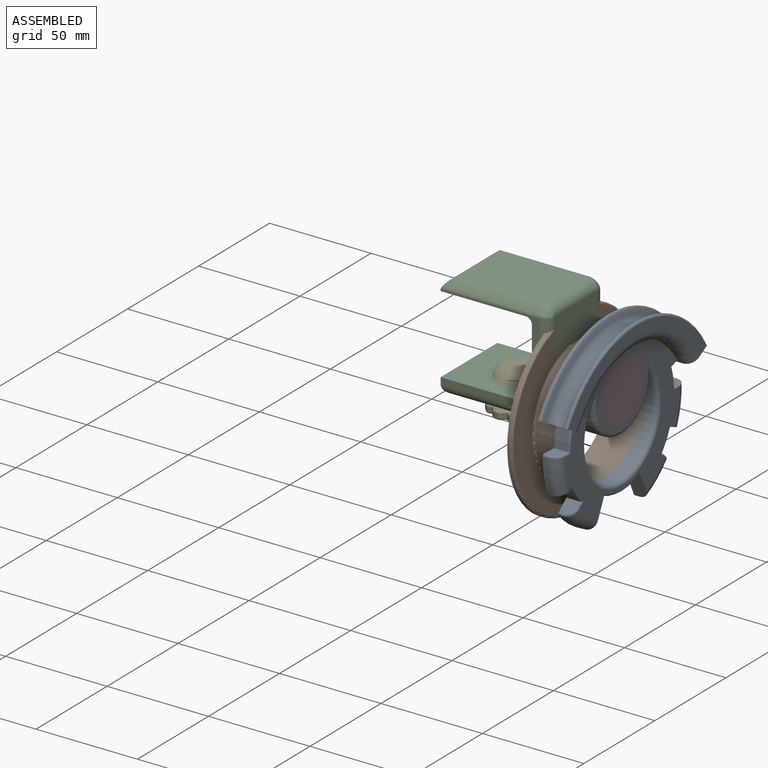
[diagram: assembled view]
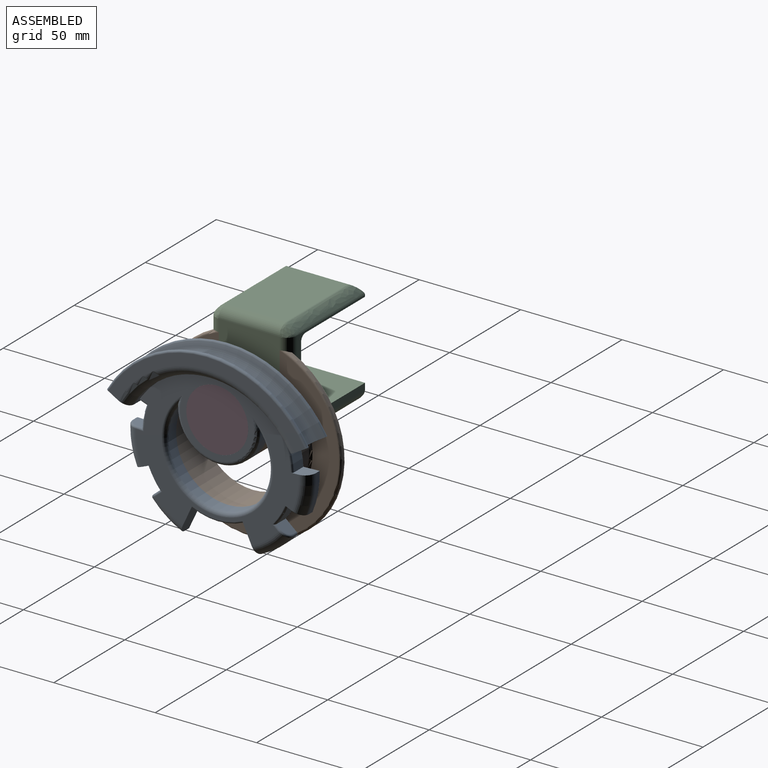
[diagram: assembled view, second angle]
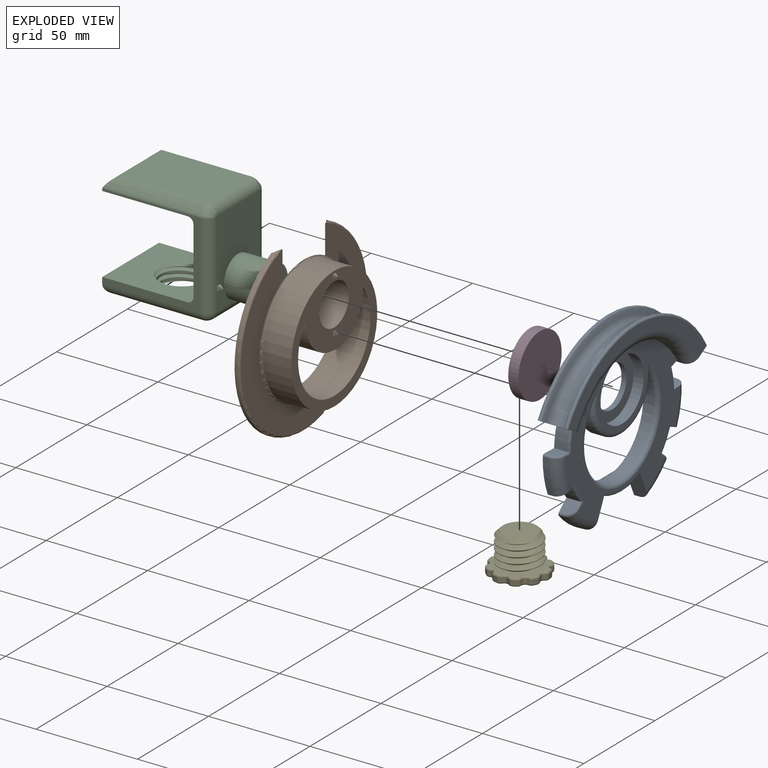
[diagram: exploded view]
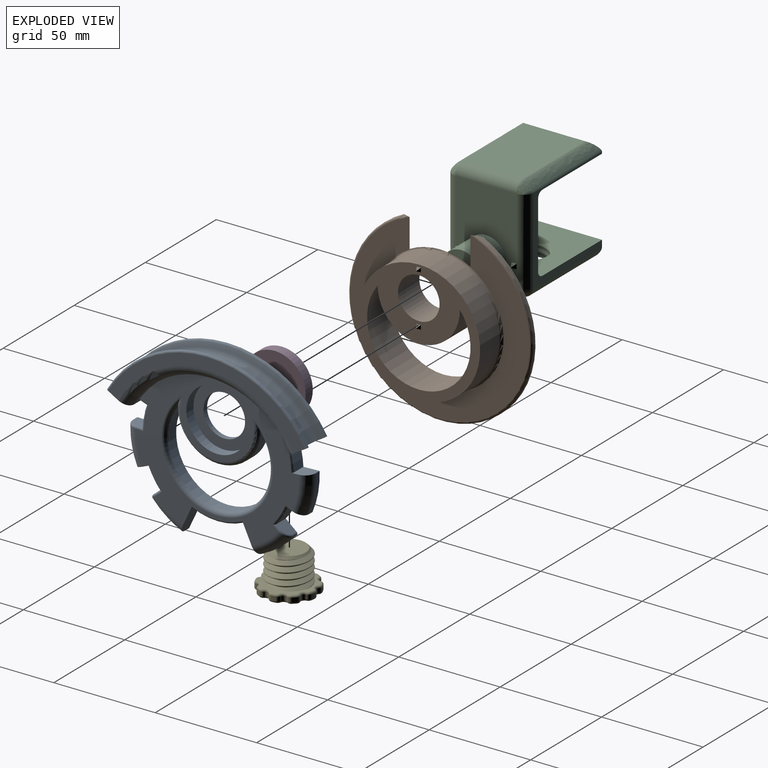
[diagram: exploded view, second angle]
ASSEMBLY  parts=5 mates=5
PART A: 68 faces, bbox 119.3x20.2x103.2 mm
  f0: cylinder r=10.25mm len=20.5mm, axis (0,1,0), area 161mm2, adj f8,f17
  f1: cylinder r=20.25mm len=40.5mm, axis (0,1,0), area 352.6mm2, adj f3,f8,f38
  f2: cylinder r=30.25mm len=25.57mm, axis (0,-1,0), area 171.6mm2, adj f8,f22,f23,f59
  f3: cylinder r=25.5mm len=51mm, axis (0,1,0), area 623.9mm2, adj f1,f8,f37
  f4: plane 15x10.21mm, normal (-0.5,0,-0.87), area 111.8mm2, adj f6,f7,f8,f9,f10,f11,f12,f13
  f5: plane 15x10.21mm, normal (0.5,0,-0.87), area 111.8mm2, adj f6,f7,f8,f9,f10,f11,f12,f13
  f6: cylinder r=45.25mm len=78.38mm, axis (0,1,0), area 254.1mm2, adj f4,f5,f8,f9,f15,f16,f32,f35
  f7: plane 97.05x30.91mm, normal (0,1,0), area 643.7mm2, adj f4,f5,f9,f14
  f8: plane 97.05x87.04mm, normal (0,-1,0), area 4425.5mm2, adj f0,f1,f2,f3,f4,f5,f6,f13
  f9: torus R=50.25mm, axis (0,1,0), area 774.2mm2, adj f4,f5,f6,f7
  f10: torus R=55.25mm, axis (0,-1,0), area 1443.1mm2, adj f4,f5,f11,f12
  f11: torus R=49.41mm, axis (0,1,0), area 278.3mm2, adj f4,f5,f10,f13
  f12: torus R=49.41mm, axis (0,1,0), area 278.3mm2, adj f4,f5,f10,f14
  f13: torus R=56.03mm, axis (0,-1,0), area 331mm2, adj f4,f5,f8,f11
  f14: torus R=56.03mm, axis (0,1,0), area 331mm2, adj f4,f5,f7,f12
  f15: plane 80.5x71.73mm, normal (0,1,0), area 2045.8mm2, adj f6,f16,f22,f23,f26,f29,f34,f35
  f16: torus R=40.25mm, axis (0,1,0), area 1.1mm2, adj f6,f15,f35
  f17: plane 30.5x30.5mm, normal (0,1,0), area 400.6mm2, adj f0,f36
  f18: cylinder r=45.25mm len=19.27mm, axis (0,-1,0), area 49.4mm2, adj f8,f29,f34,f43
  f19: cylinder r=45.25mm len=14.87mm, axis (0,-1,0), area 46.8mm2, adj f8,f23,f42,f53
  f20: cylinder r=45.25mm len=18.25mm, axis (0,-1,0), area 46.8mm2, adj f8,f26,f40,f44
  f21: cylinder r=45.25mm len=14.87mm, axis (0,-1,0), area 46.8mm2, adj f8,f22,f41,f57
  f22: plane 14.5x7.5mm, normal (-0.91,0,-0.42), area 107.3mm2, adj f2,f8,f15,f21,f41,f59
  f23: plane 14.5x7.5mm, normal (0.91,0,-0.42), area 107.3mm2, adj f2,f8,f15,f19,f42,f59
  f24: plane 6.5x5.35mm, normal (0.64,0,0.77), area 42mm2, adj f8,f25,f55,f56,f57
  f25: cylinder r=37.25mm len=9.5mm, axis (0,1,0), area 72.6mm2, adj f8,f24,f26,f54
  f26: plane 8.3x7.5mm, normal (-0.39,0,-0.92), area 54.8mm2, adj f8,f15,f20,f25,f40,f54
  f27: cylinder r=37.25mm len=9.5mm, axis (0,1,0), area 72.6mm2, adj f8,f28,f29,f50
  f28: plane 6.5x5.35mm, normal (-0.64,0,0.77), area 42mm2, adj f8,f27,f51,f52,f53
  f29: plane 8.3x7.5mm, normal (0.39,0,-0.92), area 54.8mm2, adj f8,f15,f18,f27,f43,f50
  f30: plane 6.98x6.5mm, normal (-0.04,0,1), area 42mm2, adj f8,f31,f44,f45,f46
  f31: cylinder r=37.25mm len=10.93mm, axis (0,1,0), area 72.6mm2, adj f8,f30,f32,f47
  f32: plane 6.5x3.48mm, normal (0.33,0,-0.94), area 24mm2, adj f6,f8,f31,f48,f49
  f33: cylinder r=37.25mm len=10.93mm, axis (0,1,0), area 72.6mm2, adj f8,f34,f35,f58
  f34: plane 8.99x7.5mm, normal (0.04,0,1), area 54.8mm2, adj f8,f15,f18,f33,f43,f58
  f35: plane 7.5x4.43mm, normal (-0.33,0,-0.94), area 27.9mm2, adj f6,f8,f15,f16,f33,f58
  f36: cylinder r=15.25mm len=30.5mm, axis (0,-1,0), area 479.1mm2, adj f15,f17
  f37: torus R=27.5mm, axis (0,1,0), area 386.9mm2, adj f3,f15,f38
  f38: torus R=18.25mm, axis (0,1,0), area 214.5mm2, adj f1,f15,f37
  f39: torus R=40.25mm, axis (0,1,0), area 0.5mm2, adj f6,f15,f49
  f40: torus R=40.25mm, axis (0,1,0), area 140.8mm2, adj f15,f20,f26,f45
  f41: torus R=40.25mm, axis (0,1,0), area 140.8mm2, adj f15,f21,f22,f56
  f42: torus R=40.25mm, axis (0,1,0), area 140.8mm2, adj f15,f19,f23,f52
  f43: torus R=40.25mm, axis (0,1,0), area 148.8mm2, adj f15,f18,f29,f34
  f44: cylinder r=1mm len=2.5mm, axis (0,-1,0), area 4mm2, adj f8,f20,f30,f45
  f45: bspline ~6.15x6.12mm, area 11.6mm2, adj f30,f40,f44,f46
  f46: cylinder r=1mm len=4.04mm, axis (1,0,0.04), area 5.5mm2, adj f15,f30,f45,f47
  f47: torus R=36.25mm, axis (0,1,0), area 19mm2, adj f15,f31,f46,f48
  f48: cylinder r=1mm len=4.11mm, axis (-0.94,0,-0.33), area 5.5mm2, adj f15,f32,f47,f49
  f49: bspline ~2.68x1.78mm, area 1mm2, adj f6,f32,f39,f48
  f50: torus R=36.25mm, axis (0,1,0), area 18.2mm2, adj f15,f27,f29,f51
  f51: cylinder r=1mm len=3.71mm, axis (0.77,0,0.64), area 5.5mm2, adj f15,f28,f50,f52
  f52: bspline ~6.12x5.34mm, area 11.6mm2, adj f28,f42,f51,f53
  f53: cylinder r=1mm len=2.5mm, axis (0,-1,0), area 4mm2, adj f8,f19,f28,f52
  f54: torus R=36.25mm, axis (0,1,0), area 18.2mm2, adj f15,f25,f26,f55
  f55: cylinder r=1mm len=3.71mm, axis (0.77,0,-0.64), area 5.5mm2, adj f15,f24,f54,f56
  f56: bspline ~6.12x5.34mm, area 11.6mm2, adj f24,f41,f55,f57
  f57: cylinder r=1mm len=2.5mm, axis (0,-1,0), area 4mm2, adj f8,f21,f24,f56
  f58: torus R=36.25mm, axis (0,1,0), area 17.4mm2, adj f15,f33,f34,f35
  f59: torus R=29.25mm, axis (0,1,0), area 41mm2, adj f2,f15,f22,f23
  f60: plane 2x2mm, normal (0,-0.45,0.89), area 2.2mm2, adj f8,f61,f63
  f61: plane 2x2mm, normal (0.89,-0.45,0), area 2.2mm2, adj f8,f60,f62
  f62: plane 2x2mm, normal (0,-0.45,-0.89), area 2.2mm2, adj f8,f61,f63
  f63: plane 2x2mm, normal (-0.89,-0.45,0), area 2.2mm2, adj f8,f60,f62
  f64: plane 2x2mm, normal (0,-0.45,-0.89), area 2.2mm2, adj f8,f65,f67
  f65: plane 2x2mm, normal (-0.89,-0.45,0), area 2.2mm2, adj f8,f64,f66
  f66: plane 2x2mm, normal (0,-0.45,0.89), area 2.2mm2, adj f8,f65,f67
  f67: plane 2x2mm, normal (0.89,-0.45,0), area 2.2mm2, adj f8,f64,f66
PART B: 29 faces, bbox 98x19.5x95.1 mm
  f0: plane 60.5x60.5mm, normal (0,1,0), area 1430.8mm2, adj f14,f15,f19,f20,f21,f22,f23,f24
  f1: plane 2.5x2.5mm, normal (0.89,-0.45,0), area 3.5mm2, adj f3,f5,f12
  f2: plane 2.5x2.5mm, normal (0,-0.45,0.89), area 3.5mm2, adj f7,f8,f16
  f3: plane 2.5x2.5mm, normal (0,-0.45,0.89), area 3.5mm2, adj f1,f4,f16
  f4: plane 2.5x2.5mm, normal (-0.89,-0.45,0), area 3.5mm2, adj f3,f5,f16
  f5: plane 2.5x2.5mm, normal (0,-0.45,-0.89), area 3.5mm2, adj f1,f4,f16
  f6: plane 2.5x2.5mm, normal (0,-0.45,-0.89), area 3.5mm2, adj f7,f8,f16
  f7: plane 2.5x2.5mm, normal (0.89,-0.45,0), area 3.5mm2, adj f2,f6,f16
  f8: plane 2.5x2.5mm, normal (-0.89,-0.45,0), area 3.5mm2, adj f2,f6,f17
  f9: torus R=44.25mm, axis (0,1,0), area 389.8mm2, adj f10,f11,f12,f17
  f10: plane 88.5x85.88mm, normal (0,1,0), area 2682mm2, adj f9,f12,f13,f17
  f11: cylinder r=45.25mm len=90.5mm, axis (0,-1,0), area 368.5mm2, adj f9,f12,f17,f18
  f12: cylinder r=5mm len=40.1mm, axis (0,0,1), area 190.2mm2, adj f1,f9,f10,f11,f16,f18,f20
  f13: torus R=31.25mm, axis (0,1,0), area 302.1mm2, adj f10,f14,f16
  f14: cylinder r=30.25mm len=60.5mm, axis (0,-1,0), area 2660.9mm2, adj f0,f13
  f15: cylinder r=10.25mm len=20.5mm, axis (0,1,0), area 966mm2, adj f0,f16
  f16: plane 36.25x30mm, normal (0,-1,0), area 646.2mm2, adj f2,f3,f4,f5,f6,f7,f12,f13
  f17: cylinder r=5mm len=40.1mm, axis (0,0,1), area 190.2mm2, adj f8,f9,f10,f11,f16,f18,f20
  f18: plane 90.5x86.16mm, normal (0,-1,0), area 3585mm2, adj f11,f12,f17,f19,f20
  f19: cylinder r=25.5mm len=51mm, axis (0,1,0), area 1985mm2, adj f0,f18,f20
  f20: cylinder r=20.25mm len=40.5mm, axis (0,1,0), area 1009.3mm2, adj f0,f12,f16,f17,f18,f19
  f21: plane 2x2mm, normal (0,0.45,0.89), area 2.2mm2, adj f0,f22,f24
  f22: plane 2x2mm, normal (0.89,0.45,0), area 2.2mm2, adj f0,f21,f23
  f23: plane 2x2mm, normal (0,0.45,-0.89), area 2.2mm2, adj f0,f22,f24
  f24: plane 2x2mm, normal (-0.89,0.45,0), area 2.2mm2, adj f0,f21,f23
  f25: plane 2x2mm, normal (0,0.45,-0.89), area 2.2mm2, adj f0,f26,f28
  f26: plane 2x2mm, normal (-0.89,0.45,0), area 2.2mm2, adj f0,f25,f27
  f27: plane 2x2mm, normal (0,0.45,0.89), area 2.2mm2, adj f0,f26,f28
  f28: plane 2x2mm, normal (0.89,0.45,0), area 2.2mm2, adj f0,f25,f27
PART C: 43 faces, bbox 44.1x73x53.7 mm
  f0: plane 42.35x30mm, normal (0,1,0), area 943.8mm2, adj f11,f17,f18,f19,f20,f30,f32,f33
  f1: cylinder r=10mm len=20mm, axis (0,0,-1), area 159.3mm2, adj f13,f14,f15,f16
  f2: plane 40x1mm, normal (0,-1,0), area 40mm2, adj f3,f9,f10,f40
  f3: plane 42x40mm, normal (0,0,-1), area 1680mm2, adj f2,f9,f10,f28
  f4: plane 40x32.35mm, normal (0,-1,0), area 1294mm2, adj f9,f10,f28,f29
  f5: plane 42.11x40.11mm, normal (0,0,1), area 1296.5mm2, adj f6,f9,f10,f14,f15,f16,f29
  f6: plane 40x3mm, normal (0,-1,0), area 120mm2, adj f5,f9,f10,f25
  f7: plane 43.11x30.11mm, normal (0,0,-1), area 906.5mm2, adj f13,f15,f16,f19,f23,f24,f25
  f8: plane 43x30mm, normal (0,0,1), area 1290mm2, adj f17,f39,f40,f41
  f9: plane 48x42.35mm, normal (1,0,0), area 310.9mm2, adj f2,f3,f4,f5,f6,f18,f23,f28
  f10: plane 48x42.35mm, normal (-1,0,0), area 310.9mm2, adj f2,f3,f4,f5,f6,f20,f24,f28
  f11: cylinder r=10mm len=20mm, axis (0,-1,0), area 1099.6mm2, adj f0,f12
  f12: plane 20x20mm, normal (0,1,0), area 235.6mm2, adj f11,f26
  f13: cone r=10mm half-angle=45deg, axis (0,0,-1), area 57.7mm2, adj f1,f7,f15,f16
  f14: cone r=11mm half-angle=45deg, axis (0,0,1), area 57.7mm2, adj f1,f5,f15,f16
  f15: bspline ~26.56x23mm, area 287.3mm2, adj f1,f5,f7,f13,f14,f16
  f16: bspline ~26.56x23mm, area 287.2mm2, adj f1,f5,f7,f13,f14,f15
  f17: cylinder r=5mm len=30mm, axis (-1,0,0), area 235.6mm2, adj f0,f8,f38,f42
  f18: cylinder r=5mm len=42.35mm, axis (0,0,-1), area 332.6mm2, adj f0,f9,f21,f31,f38
  f19: cylinder r=5mm len=30mm, axis (-1,0,0), area 235.6mm2, adj f0,f7,f21,f22
  f20: cylinder r=5mm len=42.35mm, axis (0,0,1), area 332.6mm2, adj f0,f10,f22,f35,f42
  f21: sphere r=5mm, area 25mm2, adj f18,f19,f23
  f22: sphere r=5mm, area 53.5mm2, adj f19,f20,f24
  f23: cylinder r=5mm len=48mm, axis (0,-1,0), area 357.4mm2, adj f7,f9,f21,f25
  f24: cylinder r=5mm len=48mm, axis (0,1,0), area 357.4mm2, adj f7,f10,f22,f25
  f25: cylinder r=5mm len=40mm, axis (-1,0,0), area 274.9mm2, adj f6,f7,f23,f24
  f26: cylinder r=5mm len=10mm, axis (0,-1,0), area 157.1mm2, adj f12,f27
  f27: plane 10x10mm, normal (0,1,0), area 78.5mm2, adj f26
  f28: cylinder r=3mm len=40mm, axis (1,0,0), area 188.5mm2, adj f3,f4,f9,f10
  f29: cylinder r=3mm len=40mm, axis (1,0,0), area 188.5mm2, adj f4,f5,f9,f10
  f30: plane 2.5x2.5mm, normal (0,0.45,0.89), area 3.5mm2, adj f0,f31,f33
  f31: plane 2.5x2.5mm, normal (0.89,0.45,0), area 3.5mm2, adj f18,f30,f32
  f32: plane 2.5x2.5mm, normal (0,0.45,-0.89), area 3.5mm2, adj f0,f31,f33
  f33: plane 2.5x2.5mm, normal (-0.89,0.45,0), area 3.5mm2, adj f0,f30,f32
  f34: plane 2.5x2.5mm, normal (0,0.45,-0.89), area 3.5mm2, adj f0,f35,f37
  f35: plane 2.5x2.5mm, normal (-0.89,0.45,0), area 3.5mm2, adj f20,f34,f36
  f36: plane 2.5x2.5mm, normal (0,0.45,0.89), area 3.5mm2, adj f0,f35,f37
  f37: plane 2.5x2.5mm, normal (0.89,0.45,0), area 3.5mm2, adj f0,f34,f36
  f38: bspline ~5.01x5mm, area 25.7mm2, adj f17,f18,f39
  f39: bspline ~50.4x5mm, area 333mm2, adj f8,f9,f38,f40
  f40: bspline ~44x5mm, area 256.2mm2, adj f2,f8,f39,f41
  f41: bspline ~50.4x5mm, area 333mm2, adj f8,f10,f40,f42
  f42: bspline ~5.01x5mm, area 25.7mm2, adj f17,f20,f41
PART D: 5 faces, bbox 30.5x10x30.5 mm
  f0: cylinder r=5mm len=10mm, axis (0,1,0), area 157.1mm2, adj f1,f4
  f1: plane 10x10mm, normal (0,-1,0), area 78.5mm2, adj f0
  f2: cylinder r=15.25mm len=30.5mm, axis (0,-1,0), area 479.1mm2, adj f3,f4
  f3: plane 30.5x30.5mm, normal (0,1,0), area 730.6mm2, adj f2
  f4: plane 30.5x30.5mm, normal (0,-1,0), area 652.1mm2, adj f0,f2
PART E: 129 faces, bbox 28.1x28.3x20.5 mm
  f0: cylinder r=14mm len=2.09mm, axis (0,0,1), area 4.2mm2, adj f26,f45,f56,f90
  f1: cylinder r=14mm len=2mm, axis (0,0,1), area 4.2mm2, adj f27,f28,f48,f89
  f2: cylinder r=14mm len=2mm, axis (0,0,1), area 4.2mm2, adj f29,f30,f51,f97
  f3: cylinder r=14mm len=2.06mm, axis (0,0,1), area 4.2mm2, adj f31,f32,f59,f105
  f4: cylinder r=14mm len=2mm, axis (0,0,1), area 4.2mm2, adj f33,f34,f67,f113
  f5: cylinder r=14mm len=2.09mm, axis (0,0,1), area 4.2mm2, adj f35,f36,f75,f121
  f6: cylinder r=14mm len=2mm, axis (0,0,1), area 4.2mm2, adj f37,f38,f83,f122
  f7: cylinder r=14mm len=2mm, axis (0,0,1), area 4.2mm2, adj f39,f40,f80,f114
  f8: cylinder r=14mm len=2.06mm, axis (0,0,1), area 4.2mm2, adj f41,f42,f72,f106
  f9: plane 16.51x16.45mm, normal (0,0,1), area 213.7mm2, adj f10,f11,f12
  f10: cone r=8.25mm half-angle=45deg, axis (0,0,-1), area 94.6mm2, adj f9,f11,f12,f128
  f11: bspline ~24.83x21.5mm, area 670.3mm2, adj f9,f10,f12,f13,f128
  f12: bspline ~24.83x21.5mm, area 670.4mm2, adj f9,f10,f11,f13,f126,f128
  f13: plane 25.99x25.8mm, normal (0,0,1), area 191.2mm2, adj f11,f12,f86,f87,f88,f89,f90,f91
  f14: cylinder r=14mm len=2mm, axis (0,0,1), area 4.2mm2, adj f43,f44,f64,f98
  f15: plane 25.99x25.8mm, normal (0,0,-1), area 472.5mm2, adj f46,f47,f48,f49,f50,f51,f52,f53
  f16: cylinder r=1.68mm len=2.37mm, axis (0,0,1), area 5.9mm2, adj f44,f45,f60,f94
  f17: cylinder r=1.68mm len=2.26mm, axis (0,0,1), area 5.9mm2, adj f42,f43,f68,f102
  f18: cylinder r=1.68mm len=2.58mm, axis (0,0,1), area 5.9mm2, adj f40,f41,f76,f110
  f19: cylinder r=1.68mm len=2mm, axis (0,0,1), area 5.9mm2, adj f38,f39,f84,f118
  f20: cylinder r=1.68mm len=2.54mm, axis (0,0,1), area 5.9mm2, adj f36,f37,f79,f125
  f21: cylinder r=1.68mm len=2.37mm, axis (0,0,1), area 5.9mm2, adj f34,f35,f71,f117
  f22: cylinder r=1.68mm len=2.26mm, axis (0,0,1), area 5.9mm2, adj f32,f33,f63,f109
  f23: cylinder r=1.68mm len=2.58mm, axis (0,0,1), area 5.9mm2, adj f30,f31,f55,f101
  f24: cylinder r=1.68mm len=2mm, axis (0,0,1), area 5.9mm2, adj f28,f29,f47,f93
  f25: cylinder r=1.68mm len=2.54mm, axis (0,0,1), area 5.9mm2, adj f26,f27,f52,f86
  f26: cylinder r=2mm len=2mm, axis (0,0,-1), area 4.5mm2, adj f0,f25,f54,f88
  f27: cylinder r=2mm len=2.11mm, axis (0,0,1), area 4.5mm2, adj f1,f25,f50,f87
  f28: cylinder r=2mm len=2mm, axis (0,0,-1), area 4.5mm2, adj f1,f24,f46,f91
  f29: cylinder r=2mm len=2mm, axis (0,0,1), area 4.5mm2, adj f2,f24,f49,f95
  f30: cylinder r=2mm len=2.08mm, axis (0,0,-1), area 4.5mm2, adj f2,f23,f53,f99
  f31: cylinder r=2mm len=2mm, axis (0,0,1), area 4.5mm2, adj f3,f23,f57,f103
  f32: cylinder r=2mm len=2mm, axis (0,0,-1), area 4.5mm2, adj f3,f22,f61,f107
  f33: cylinder r=2mm len=2.09mm, axis (0,0,1), area 4.5mm2, adj f4,f22,f65,f111
  f34: cylinder r=2mm len=2.11mm, axis (0,0,-1), area 4.5mm2, adj f4,f21,f69,f115
  f35: cylinder r=2mm len=2mm, axis (0,0,1), area 4.5mm2, adj f5,f21,f73,f119
  f36: cylinder r=2mm len=2mm, axis (0,0,-1), area 4.5mm2, adj f5,f20,f77,f123
  f37: cylinder r=2mm len=2.11mm, axis (0,0,1), area 4.5mm2, adj f6,f20,f81,f124
  f38: cylinder r=2mm len=2mm, axis (0,0,-1), area 4.5mm2, adj f6,f19,f85,f120
  f39: cylinder r=2mm len=2mm, axis (0,0,1), area 4.5mm2, adj f7,f19,f82,f116
  f40: cylinder r=2mm len=2.08mm, axis (0,0,-1), area 4.5mm2, adj f7,f18,f78,f112
  f41: cylinder r=2mm len=2mm, axis (0,0,1), area 4.5mm2, adj f8,f18,f74,f108
  f42: cylinder r=2mm len=2mm, axis (0,0,-1), area 4.5mm2, adj f8,f17,f70,f104
  f43: cylinder r=2mm len=2.09mm, axis (0,0,1), area 4.5mm2, adj f14,f17,f66,f100
  f44: cylinder r=2mm len=2.11mm, axis (0,0,-1), area 4.5mm2, adj f14,f16,f62,f96
  f45: cylinder r=2mm len=2mm, axis (0,0,1), area 4.5mm2, adj f0,f16,f58,f92
  f46: torus R=1mm, axis (0,0,1), area 2.9mm2, adj f15,f28,f47,f48
  f47: torus R=2.68mm, axis (0,0,1), area 5.7mm2, adj f15,f24,f46,f49
  f48: torus R=13mm, axis (0,0,1), area 3.2mm2, adj f1,f15,f46,f50
  f49: torus R=1mm, axis (0,0,1), area 2.9mm2, adj f15,f29,f47,f51
  f50: torus R=1mm, axis (0,0,1), area 2.9mm2, adj f15,f27,f48,f52
  f51: torus R=13mm, axis (0,0,1), area 3.2mm2, adj f2,f15,f49,f53
  f52: torus R=2.68mm, axis (0,0,1), area 5.7mm2, adj f15,f25,f50,f54
  f53: torus R=1mm, axis (0,0,1), area 2.9mm2, adj f15,f30,f51,f55
  f54: torus R=1mm, axis (0,0,1), area 2.9mm2, adj f15,f26,f52,f56
  f55: torus R=2.68mm, axis (0,0,1), area 5.7mm2, adj f15,f23,f53,f57
  f56: torus R=13mm, axis (0,0,1), area 3.2mm2, adj f0,f15,f54,f58
  f57: torus R=1mm, axis (0,0,1), area 2.9mm2, adj f15,f31,f55,f59
  f58: torus R=1mm, axis (0,0,1), area 2.9mm2, adj f15,f45,f56,f60
  f59: torus R=13mm, axis (0,0,1), area 3.2mm2, adj f3,f15,f57,f61
  f60: torus R=2.68mm, axis (0,0,1), area 5.7mm2, adj f15,f16,f58,f62
  f61: torus R=1mm, axis (0,0,1), area 2.9mm2, adj f15,f32,f59,f63
  f62: torus R=1mm, axis (0,0,1), area 2.9mm2, adj f15,f44,f60,f64
  f63: torus R=2.68mm, axis (0,0,1), area 5.7mm2, adj f15,f22,f61,f65
  f64: torus R=13mm, axis (0,0,1), area 3.2mm2, adj f14,f15,f62,f66
  f65: torus R=1mm, axis (0,0,1), area 2.9mm2, adj f15,f33,f63,f67
  f66: torus R=1mm, axis (0,0,1), area 2.9mm2, adj f15,f43,f64,f68
  f67: torus R=13mm, axis (0,0,1), area 3.2mm2, adj f4,f15,f65,f69
  f68: torus R=2.68mm, axis (0,0,1), area 5.7mm2, adj f15,f17,f66,f70
  f69: torus R=1mm, axis (0,0,1), area 2.9mm2, adj f15,f34,f67,f71
  f70: torus R=1mm, axis (0,0,1), area 2.9mm2, adj f15,f42,f68,f72
  f71: torus R=2.68mm, axis (0,0,1), area 5.7mm2, adj f15,f21,f69,f73
  f72: torus R=13mm, axis (0,0,1), area 3.2mm2, adj f8,f15,f70,f74
  f73: torus R=1mm, axis (0,0,1), area 2.9mm2, adj f15,f35,f71,f75
  f74: torus R=1mm, axis (0,0,1), area 2.9mm2, adj f15,f41,f72,f76
  f75: torus R=13mm, axis (0,0,1), area 3.2mm2, adj f5,f15,f73,f77
  f76: torus R=2.68mm, axis (0,0,1), area 5.7mm2, adj f15,f18,f74,f78
  f77: torus R=1mm, axis (0,0,1), area 2.9mm2, adj f15,f36,f75,f79
  f78: torus R=1mm, axis (0,0,1), area 2.9mm2, adj f15,f40,f76,f80
  f79: torus R=2.68mm, axis (0,0,1), area 5.7mm2, adj f15,f20,f77,f81
  f80: torus R=13mm, axis (0,0,1), area 3.2mm2, adj f7,f15,f78,f82
  f81: torus R=1mm, axis (0,0,1), area 2.9mm2, adj f15,f37,f79,f83
  f82: torus R=1mm, axis (0,0,1), area 2.9mm2, adj f15,f39,f80,f84
  f83: torus R=13mm, axis (0,0,1), area 3.2mm2, adj f6,f15,f81,f85
  f84: torus R=2.68mm, axis (0,0,1), area 5.7mm2, adj f15,f19,f82,f85
  f85: torus R=1mm, axis (0,0,1), area 2.9mm2, adj f15,f38,f83,f84
  f86: torus R=2.68mm, axis (0,0,1), area 5.7mm2, adj f13,f25,f87,f88
  f87: torus R=1mm, axis (0,0,1), area 2.9mm2, adj f13,f27,f86,f89
  f88: torus R=1mm, axis (0,0,1), area 2.9mm2, adj f13,f26,f86,f90
  f89: torus R=13mm, axis (0,0,1), area 3.2mm2, adj f1,f13,f87,f91
  f90: torus R=13mm, axis (0,0,1), area 3.2mm2, adj f0,f13,f88,f92
  f91: torus R=1mm, axis (0,0,1), area 2.9mm2, adj f13,f28,f89,f93
  f92: torus R=1mm, axis (0,0,1), area 2.9mm2, adj f13,f45,f90,f94
  f93: torus R=2.68mm, axis (0,0,1), area 5.7mm2, adj f13,f24,f91,f95
  f94: torus R=2.68mm, axis (0,0,1), area 5.7mm2, adj f13,f16,f92,f96
  f95: torus R=1mm, axis (0,0,1), area 2.9mm2, adj f13,f29,f93,f97
  f96: torus R=1mm, axis (0,0,1), area 2.9mm2, adj f13,f44,f94,f98
  f97: torus R=13mm, axis (0,0,1), area 3.2mm2, adj f2,f13,f95,f99
  f98: torus R=13mm, axis (0,0,1), area 3.2mm2, adj f13,f14,f96,f100
  f99: torus R=1mm, axis (0,0,1), area 2.9mm2, adj f13,f30,f97,f101
  f100: torus R=1mm, axis (0,0,1), area 2.9mm2, adj f13,f43,f98,f102
  f101: torus R=2.68mm, axis (0,0,1), area 5.7mm2, adj f13,f23,f99,f103
  f102: torus R=2.68mm, axis (0,0,1), area 5.7mm2, adj f13,f17,f100,f104
  f103: torus R=1mm, axis (0,0,1), area 2.9mm2, adj f13,f31,f101,f105
  f104: torus R=1mm, axis (0,0,1), area 2.9mm2, adj f13,f42,f102,f106
  f105: torus R=13mm, axis (0,0,1), area 3.2mm2, adj f3,f13,f103,f107
  f106: torus R=13mm, axis (0,0,1), area 3.2mm2, adj f8,f13,f104,f108
  f107: torus R=1mm, axis (0,0,1), area 2.9mm2, adj f13,f32,f105,f109
  f108: torus R=1mm, axis (0,0,1), area 2.9mm2, adj f13,f41,f106,f110
  f109: torus R=2.68mm, axis (0,0,1), area 5.7mm2, adj f13,f22,f107,f111
  f110: torus R=2.68mm, axis (0,0,1), area 5.7mm2, adj f13,f18,f108,f112
  f111: torus R=1mm, axis (0,0,1), area 2.9mm2, adj f13,f33,f109,f113
  f112: torus R=1mm, axis (0,0,1), area 2.9mm2, adj f13,f40,f110,f114
  f113: torus R=13mm, axis (0,0,1), area 3.2mm2, adj f4,f13,f111,f115
  f114: torus R=13mm, axis (0,0,1), area 3.2mm2, adj f7,f13,f112,f116
  f115: torus R=1mm, axis (0,0,1), area 2.9mm2, adj f13,f34,f113,f117
  f116: torus R=1mm, axis (0,0,1), area 2.9mm2, adj f13,f39,f114,f118
  f117: torus R=2.68mm, axis (0,0,1), area 5.7mm2, adj f13,f21,f115,f119
  f118: torus R=2.68mm, axis (0,0,1), area 5.7mm2, adj f13,f19,f116,f120
  f119: torus R=1mm, axis (0,0,1), area 2.9mm2, adj f13,f35,f117,f121
  f120: torus R=1mm, axis (0,0,1), area 2.9mm2, adj f13,f38,f118,f122
  f121: torus R=13mm, axis (0,0,1), area 3.2mm2, adj f5,f13,f119,f123
  f122: torus R=13mm, axis (0,0,1), area 3.2mm2, adj f6,f13,f120,f124
  f123: torus R=1mm, axis (0,0,1), area 2.9mm2, adj f13,f36,f121,f125
  f124: torus R=1mm, axis (0,0,1), area 2.9mm2, adj f13,f37,f122,f125
  f125: torus R=2.68mm, axis (0,0,1), area 5.7mm2, adj f13,f20,f123,f124
  f126: bspline ~1.5x0.7mm, area 0mm2, adj f12,f13,f127
  f127: bspline ~0.06x0.03mm, area 0mm2, adj f13,f126,f128
  f128: bspline ~21.51x21.51mm, area 174.7mm2, adj f10,f11,f12,f13,f127
PLACE A rot(axis=(0,0,-1),90deg) t=(-27.16,80.05,-15.22)mm
PLACE B rot(axis=(0,0,-1),90deg) t=(-27.16,80.05,-15.22)mm
PLACE C rot(axis=(0,0,-1),90deg) t=(-81.33,80.05,34.22)mm fixed
PLACE D rot(axis=(-0.58,-0.58,-0.58),120deg) t=(-27.16,80.05,28.19)mm
PLACE E rot(axis=(0,0,1),91.9deg) t=(-72.66,80.05,9.95)mm
MATE slider B.f15 <-> A.f0  axis (1,0,0) through (-29.66,80.05,28.19)mm
MATE slider A.f0 <-> D.f2  axis (1,0,0) through (-22.16,80.05,28.19)mm
MATE slider B.f15 <-> C.f11  axis (-1,0,0) through (-44.66,80.05,28.19)mm
MATE cylindrical E.f10 <-> C.f1  axis (0,0,1) through (-72.66,80.05,24.95)mm
MATE slider B.f15 <-> A.f0  axis (1,0,0) through (-29.66,80.05,28.19)mm
